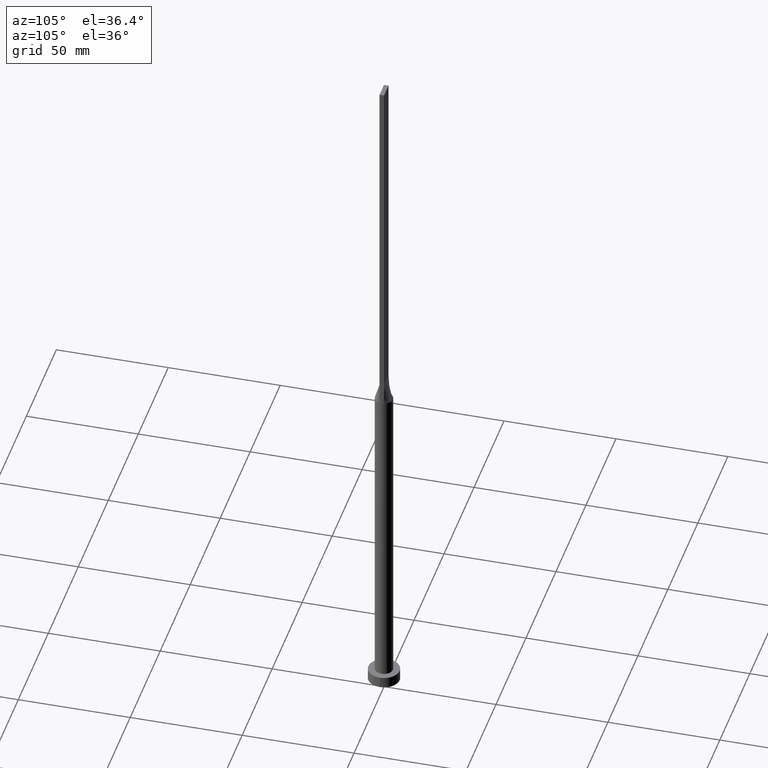
[diagram: clean part render]
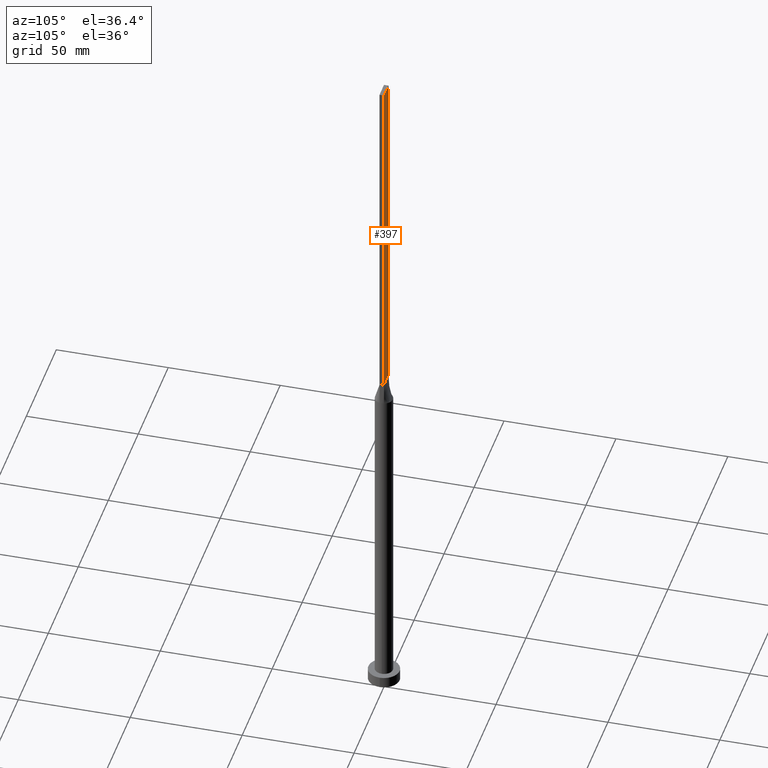
[diagram: same view with one face highlighted and labeled with its STEP entity id]
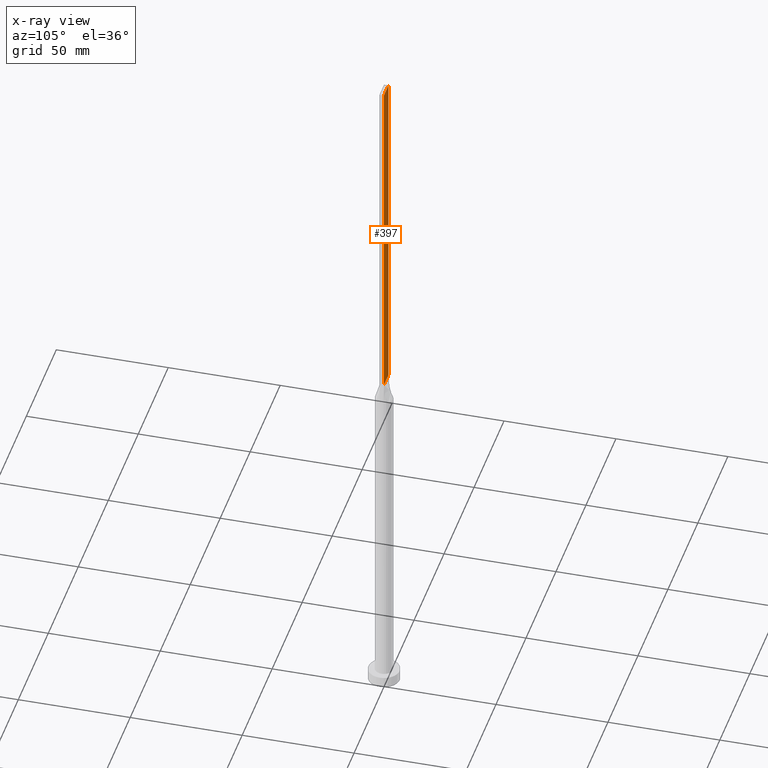
[diagram: x-ray of the same camera — body ghosted, the highlighted face saturated]
A machine part, auxiliary view. The second image highlights one B-rep face of the part: STEP entity #397.
The next image is the same camera in x-ray: the body ghosted, the highlighted face saturated — about 0% of this face is hidden behind the body in this view.
In plain terms, the highlighted planar face has unit normal (0, -1, 0).
Its self-contained STEP definition (entity closure, byte-faithful):
#8 = ORIENTED_EDGE ( 'NONE', *, *, #406, .F. ) ;
#9 = DIRECTION ( 'NONE',  ( -0.000000000000000000, -0.000000000000000000, -1.000000000000000000 ) ) ;
#10 = VECTOR ( 'NONE', #9, 1000.000000000000000 ) ;
#12 = DIRECTION ( 'NONE',  ( 0.000000000000000000, -0.000000000000000000, -1.000000000000000000 ) ) ;
#15 = VERTEX_POINT ( 'NONE', #23 ) ;
#21 = EDGE_CURVE ( 'NONE', #525, #423, #528, .T. ) ;
#23 = CARTESIAN_POINT ( 'NONE',  ( 3.750000000000000000, 1.000000000000000000, 160.0000000000000000 ) ) ;
#40 = ORIENTED_EDGE ( 'NONE', *, *, #21, .F. ) ;
#41 = AXIS2_PLACEMENT_3D ( 'NONE', #195, #405, #12 ) ;
#60 = DIRECTION ( 'NONE',  ( -1.000000000000000000, -0.000000000000000000, -0.000000000000000000 ) ) ;
#75 = DIRECTION ( 'NONE',  ( -1.000000000000000000, 0.000000000000000000, 0.000000000000000000 ) ) ;
#106 = ORIENTED_EDGE ( 'NONE', *, *, #275, .T. ) ;
#147 = CARTESIAN_POINT ( 'NONE',  ( -3.750000000000000000, 1.000000000000000000, 160.0000000000000000 ) ) ;
#155 = FACE_OUTER_BOUND ( 'NONE', #298, .T. ) ;
#195 = CARTESIAN_POINT ( 'NONE',  ( 3.750000000000000000, 1.000000000000000000, 315.0000000000000000 ) ) ;
#222 = CARTESIAN_POINT ( 'NONE',  ( 3.750000000000000000, 1.000000000000000000, 315.0000000000000000 ) ) ;
#275 = EDGE_CURVE ( 'NONE', #525, #15, #475, .T. ) ;
#281 = VECTOR ( 'NONE', #75, 1000.000000000000000 ) ;
#285 = VECTOR ( 'NONE', #573, 1000.000000000000000 ) ;
#286 = LINE ( 'NONE', #147, #319 ) ;
#298 = EDGE_LOOP ( 'NONE', ( #518, #8, #40, #106 ) ) ;
#301 = CARTESIAN_POINT ( 'NONE',  ( 3.750000000000000000, 1.000000000000000000, 315.0000000000000000 ) ) ;
#319 = VECTOR ( 'NONE', #60, 1000.000000000000000 ) ;
#326 = CARTESIAN_POINT ( 'NONE',  ( -3.750000000000000000, 1.000000000000000000, 315.0000000000000000 ) ) ;
#360 = CARTESIAN_POINT ( 'NONE',  ( -3.750000000000000000, 1.000000000000000000, 315.0000000000000000 ) ) ;
#376 = LINE ( 'NONE', #360, #10 ) ;
#397 = ADVANCED_FACE ( 'NONE', ( #155 ), #556, .F. ) ;
#405 = DIRECTION ( 'NONE',  ( 0.000000000000000000, -1.000000000000000000, 0.000000000000000000 ) ) ;
#406 = EDGE_CURVE ( 'NONE', #423, #492, #376, .T. ) ;
#423 = VERTEX_POINT ( 'NONE', #326 ) ;
#450 = CARTESIAN_POINT ( 'NONE',  ( -3.750000000000000000, 1.000000000000000000, 160.0000000000000000 ) ) ;
#468 = EDGE_CURVE ( 'NONE', #15, #492, #286, .T. ) ;
#475 = LINE ( 'NONE', #479, #285 ) ;
#479 = CARTESIAN_POINT ( 'NONE',  ( 3.750000000000000000, 1.000000000000000000, 315.0000000000000000 ) ) ;
#492 = VERTEX_POINT ( 'NONE', #450 ) ;
#518 = ORIENTED_EDGE ( 'NONE', *, *, #468, .T. ) ;
#525 = VERTEX_POINT ( 'NONE', #222 ) ;
#528 = LINE ( 'NONE', #301, #281 ) ;
#556 = PLANE ( 'NONE',  #41 ) ;
#573 = DIRECTION ( 'NONE',  ( -0.000000000000000000, -0.000000000000000000, -1.000000000000000000 ) ) ;